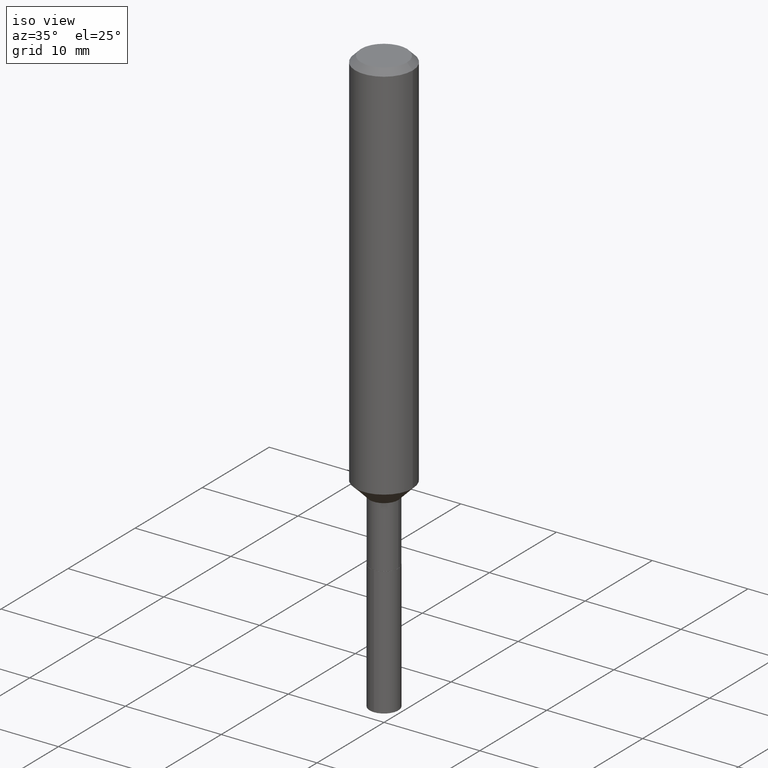
[diagram: clean part render]
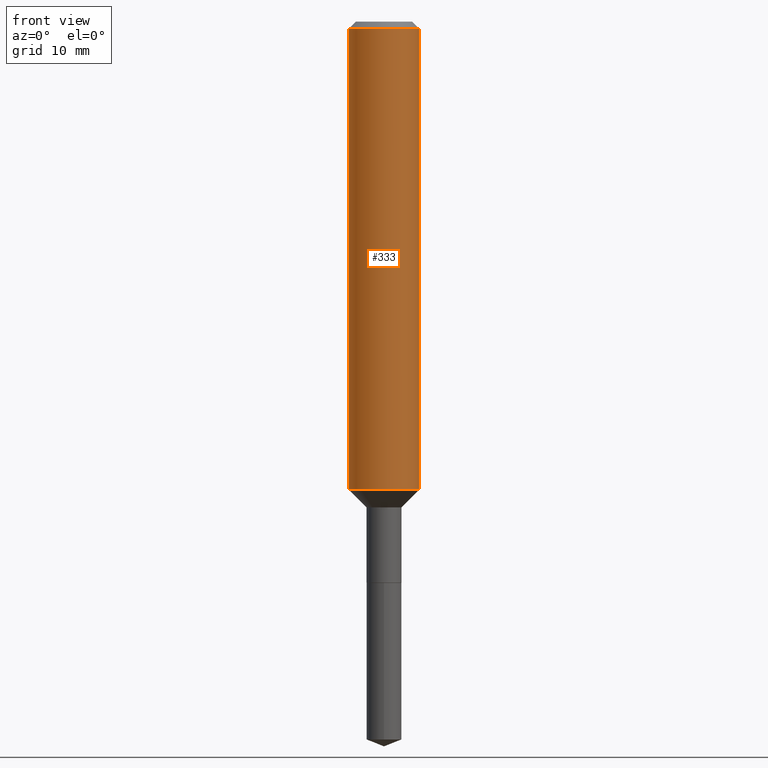
[diagram: tour spotlight — one face highlighted and labeled with its STEP entity id]
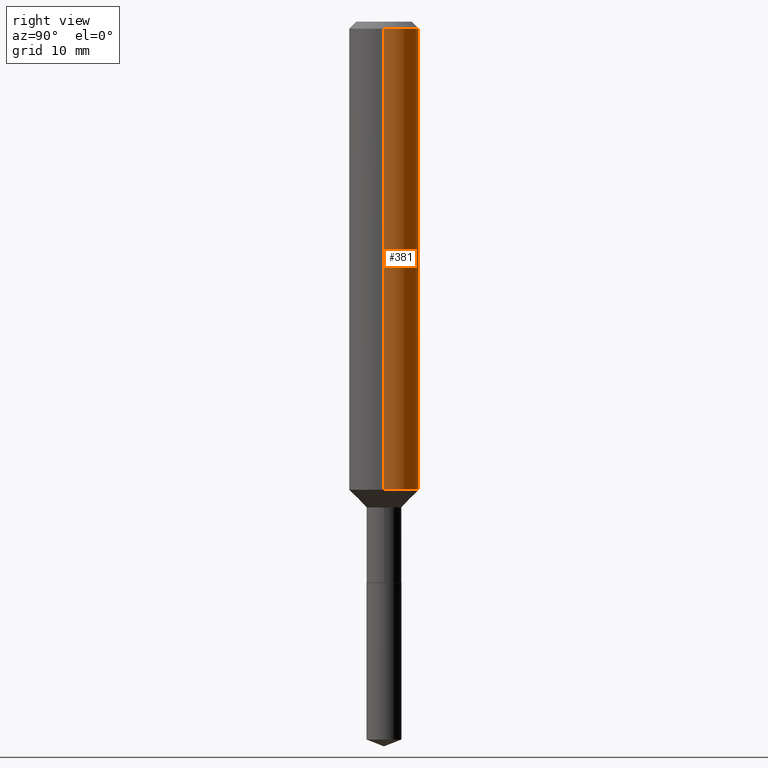
[diagram: tour spotlight — one face highlighted and labeled with its STEP entity id]
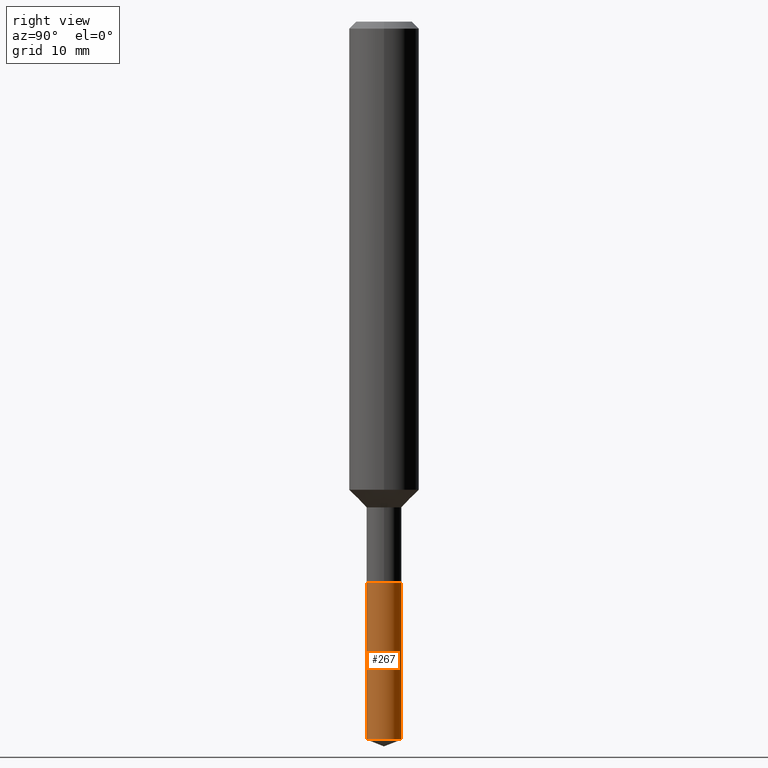
[diagram: tour spotlight — one face highlighted and labeled with its STEP entity id]
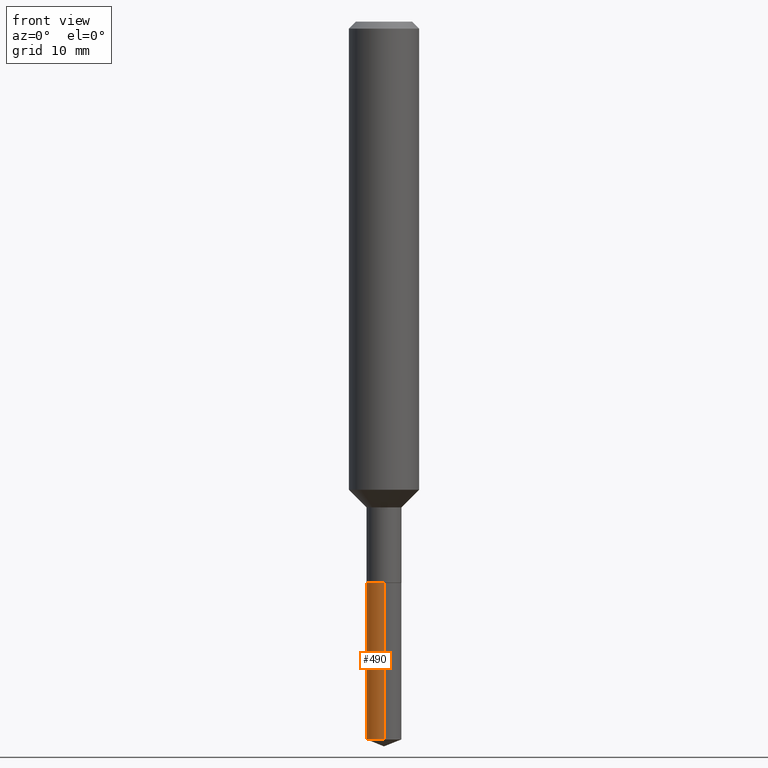
[diagram: tour spotlight — one face highlighted and labeled with its STEP entity id]
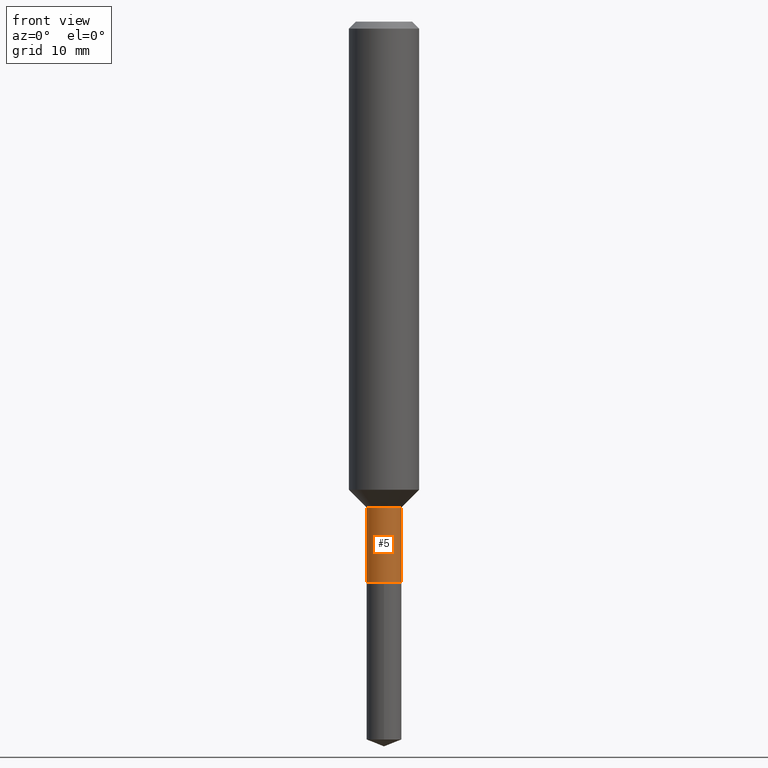
[diagram: tour spotlight — one face highlighted and labeled with its STEP entity id]
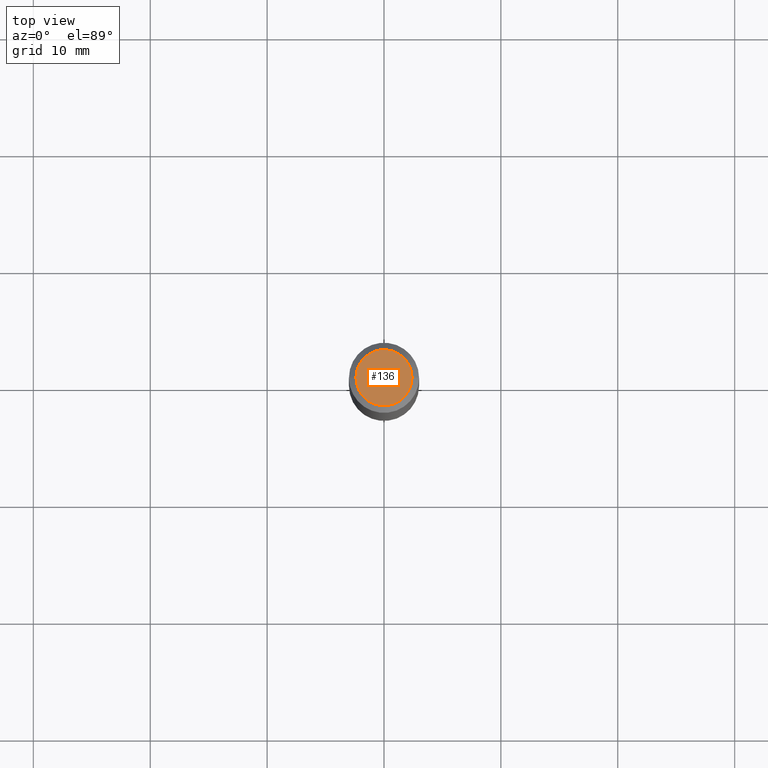
[diagram: tour spotlight — one face highlighted and labeled with its STEP entity id]
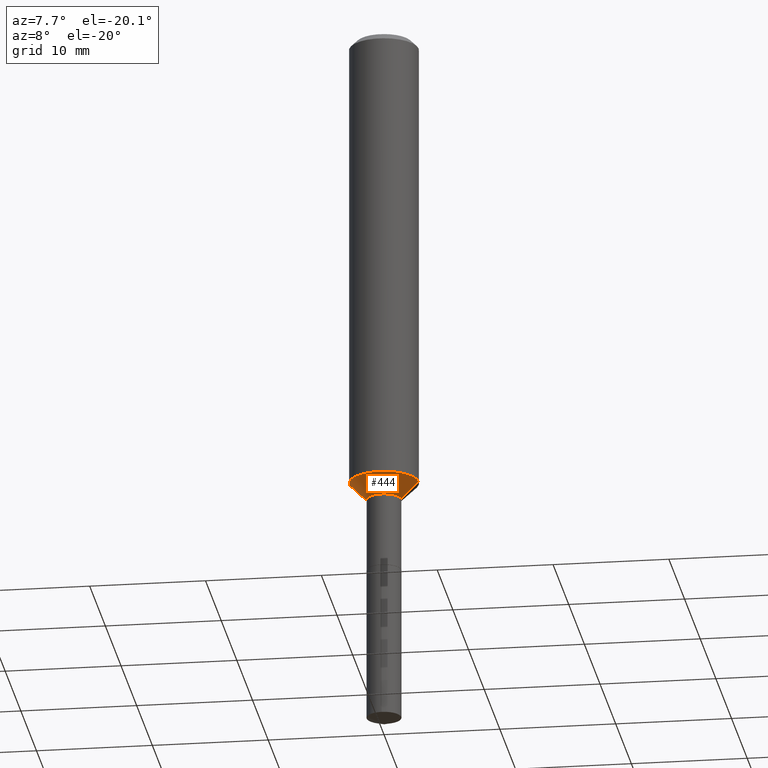
[diagram: tour spotlight — one face highlighted and labeled with its STEP entity id]
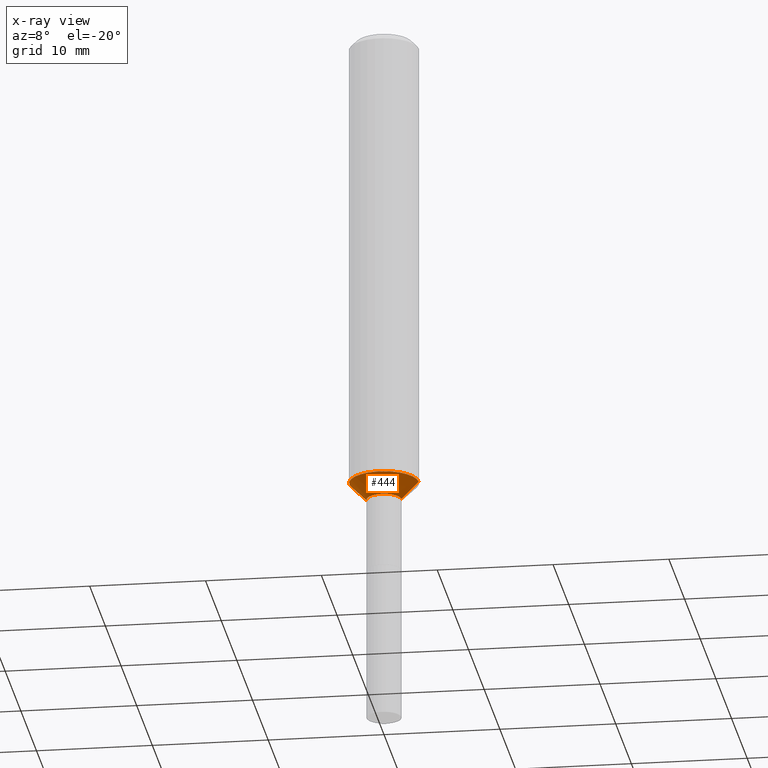
[diagram: x-ray of the same camera — body ghosted, this tour face saturated]
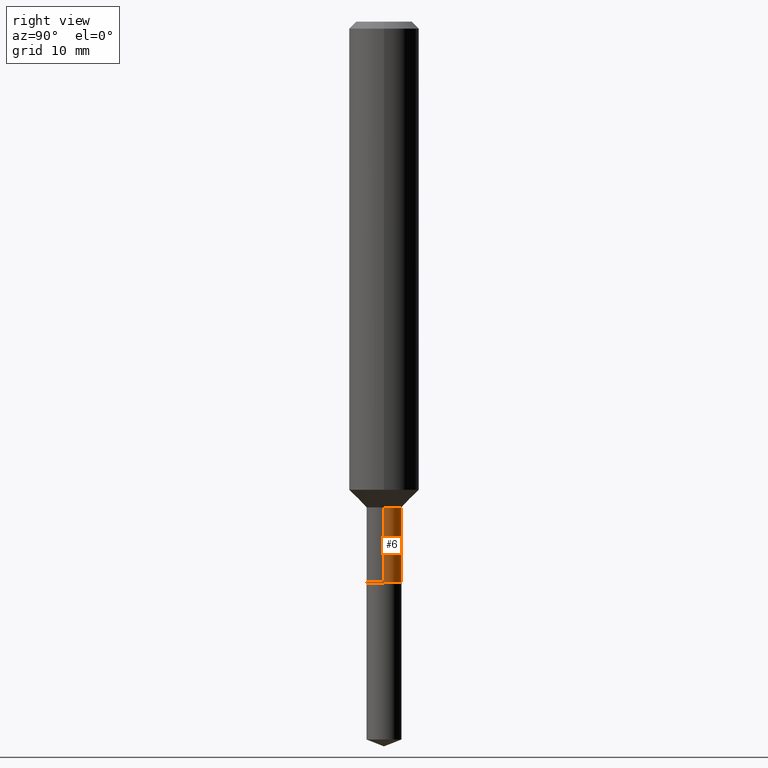
[diagram: tour spotlight — one face highlighted and labeled with its STEP entity id]
A machine part: a face-by-face anatomy tour. The part has 17 B-rep faces; the first image is the clean iso view, then the 8 largest visible faces are spotlighted one at a time (largest first), each with its STEP entity span.

Face 1 — front view, entity #333. In plain terms, the highlighted cylindrical surface (edge-blend (fillet) strip) has radius 2.9997 mm, axis along (-0, 0, 1).
Definition (entity closure, byte-faithful):
#34 = VERTEX_POINT ( 'NONE', #461 ) ;
#57 = VECTOR ( 'NONE', #242, 39.37007874015748143 ) ;
#61 = CARTESIAN_POINT ( 'NONE',  ( 3.855892940152414609E-29, -5.505193201020929624E-15, -1.576750000000000096 ) ) ;
#66 = LINE ( 'NONE', #477, #57 ) ;
#97 = CARTESIAN_POINT ( 'NONE',  ( 0.1180999999999999966, -9.071566814582237199E-16, -0.02362000000000014088 ) ) ;
#109 = VERTEX_POINT ( 'NONE', #97 ) ;
#111 = CIRCLE ( 'NONE', #380, 0.1181000000000001632 ) ;
#160 = VERTEX_POINT ( 'NONE', #353 ) ;
#177 = AXIS2_PLACEMENT_3D ( 'NONE', #438, #475, #210 ) ;
#178 = CARTESIAN_POINT ( 'NONE',  ( -0.1181000000000000799, 8.391509709326788873E-16, -5.809262341591047988E-30 ) ) ;
#205 = VECTOR ( 'NONE', #252, 39.37007874015748143 ) ;
#210 = DIRECTION ( 'NONE',  ( 1.000000000000000000, -6.982962677686266711E-15, 4.876176775795936353E-29 ) ) ;
#217 = ORIENTED_EDGE ( 'NONE', *, *, #393, .T. ) ;
#226 = VERTEX_POINT ( 'NONE', #283 ) ;
#242 = DIRECTION ( 'NONE',  ( -2.445468806185136877E-29, 3.491481338843145188E-15, 1.000000000000000000 ) ) ;
#244 = EDGE_CURVE ( 'NONE', #226, #109, #350, .T. ) ;
#245 = FACE_OUTER_BOUND ( 'NONE', #323, .T. ) ;
#252 = DIRECTION ( 'NONE',  ( -2.445468806185136877E-29, 3.491481338843145188E-15, 1.000000000000000000 ) ) ;
#258 = ORIENTED_EDGE ( 'NONE', *, *, #314, .F. ) ;
#270 = DIRECTION ( 'NONE',  ( -2.445468806185136597E-29, 3.491481338843145583E-15, 1.000000000000000000 ) ) ;
#283 = CARTESIAN_POINT ( 'NONE',  ( -0.1180999999999999966, -1.954680024189523160E-15, -0.02362000000000014088 ) ) ;
#295 = DIRECTION ( 'NONE',  ( 1.000000000000000000, -6.982962677686270655E-15, 0.000000000000000000 ) ) ;
#314 = EDGE_CURVE ( 'NONE', #34, #226, #442, .T. ) ;
#323 = EDGE_LOOP ( 'NONE', ( #258, #443, #217, #485 ) ) ;
#333 = ADVANCED_FACE ( 'NONE', ( #245 ), #365, .T. ) ;
#350 = CIRCLE ( 'NONE', #355, 0.1180999999999999966 ) ;
#353 = CARTESIAN_POINT ( 'NONE',  ( 0.1181000000000001632, -6.329881093255679464E-15, -1.576750000000000096 ) ) ;
#355 = AXIS2_PLACEMENT_3D ( 'NONE', #469, #270, #383 ) ;
#363 = EDGE_CURVE ( 'NONE', #34, #160, #111, .T. ) ;
#365 = CYLINDRICAL_SURFACE ( 'NONE', #177, 0.1181000000000000799 ) ;
#380 = AXIS2_PLACEMENT_3D ( 'NONE', #61, #395, #295 ) ;
#383 = DIRECTION ( 'NONE',  ( 1.000000000000000000, -6.982962677686266711E-15, 0.000000000000000000 ) ) ;
#393 = EDGE_CURVE ( 'NONE', #160, #109, #66, .T. ) ;
#395 = DIRECTION ( 'NONE',  ( -2.445468806185136597E-29, 3.491481338843145583E-15, 1.000000000000000000 ) ) ;
#438 = CARTESIAN_POINT ( 'NONE',  ( 0.000000000000000000, 0.000000000000000000, 0.000000000000000000 ) ) ;
#442 = LINE ( 'NONE', #178, #205 ) ;
#443 = ORIENTED_EDGE ( 'NONE', *, *, #363, .T. ) ;
#461 = CARTESIAN_POINT ( 'NONE',  ( -0.1181000000000001632, -4.666042230088249849E-15, -1.576750000000000096 ) ) ;
#469 = CARTESIAN_POINT ( 'NONE',  ( 5.776197320209327532E-31, -8.246878922347559293E-17, -0.02362000000000014088 ) ) ;
#475 = DIRECTION ( 'NONE',  ( -2.445468806185136597E-29, 3.491481338843145583E-15, 1.000000000000000000 ) ) ;
#477 = CARTESIAN_POINT ( 'NONE',  ( 0.1181000000000000799, -8.246878922347486570E-16, 5.758764772215004644E-30 ) ) ;
#485 = ORIENTED_EDGE ( 'NONE', *, *, #244, .F. ) ;

Face 2 — right view, entity #381. In plain terms, the highlighted cylindrical surface (edge-blend (fillet) strip) has radius 2.9997 mm, axis along (-0, 0, 1).
Definition (entity closure, byte-faithful):
#12 = DIRECTION ( 'NONE',  ( -2.445468806185136597E-29, 3.491481338843145583E-15, 1.000000000000000000 ) ) ;
#33 = CARTESIAN_POINT ( 'NONE',  ( 0.000000000000000000, 0.000000000000000000, 0.000000000000000000 ) ) ;
#34 = VERTEX_POINT ( 'NONE', #461 ) ;
#57 = VECTOR ( 'NONE', #242, 39.37007874015748143 ) ;
#66 = LINE ( 'NONE', #477, #57 ) ;
#97 = CARTESIAN_POINT ( 'NONE',  ( 0.1180999999999999966, -9.071566814582237199E-16, -0.02362000000000014088 ) ) ;
#104 = CYLINDRICAL_SURFACE ( 'NONE', #386, 0.1181000000000000799 ) ;
#107 = ORIENTED_EDGE ( 'NONE', *, *, #393, .F. ) ;
#109 = VERTEX_POINT ( 'NONE', #97 ) ;
#160 = VERTEX_POINT ( 'NONE', #353 ) ;
#166 = DIRECTION ( 'NONE',  ( 1.000000000000000000, -6.982962677686270655E-15, 0.000000000000000000 ) ) ;
#178 = CARTESIAN_POINT ( 'NONE',  ( -0.1181000000000000799, 8.391509709326788873E-16, -5.809262341591047988E-30 ) ) ;
#195 = CARTESIAN_POINT ( 'NONE',  ( 5.776197320209327532E-31, -8.246878922347559293E-17, -0.02362000000000014088 ) ) ;
#200 = EDGE_CURVE ( 'NONE', #160, #34, #440, .T. ) ;
#205 = VECTOR ( 'NONE', #252, 39.37007874015748143 ) ;
#211 = ORIENTED_EDGE ( 'NONE', *, *, #200, .T. ) ;
#222 = AXIS2_PLACEMENT_3D ( 'NONE', #313, #464, #166 ) ;
#226 = VERTEX_POINT ( 'NONE', #283 ) ;
#234 = ORIENTED_EDGE ( 'NONE', *, *, #314, .T. ) ;
#242 = DIRECTION ( 'NONE',  ( -2.445468806185136877E-29, 3.491481338843145188E-15, 1.000000000000000000 ) ) ;
#250 = FACE_OUTER_BOUND ( 'NONE', #364, .T. ) ;
#252 = DIRECTION ( 'NONE',  ( -2.445468806185136877E-29, 3.491481338843145188E-15, 1.000000000000000000 ) ) ;
#273 = AXIS2_PLACEMENT_3D ( 'NONE', #195, #12, #312 ) ;
#283 = CARTESIAN_POINT ( 'NONE',  ( -0.1180999999999999966, -1.954680024189523160E-15, -0.02362000000000014088 ) ) ;
#302 = EDGE_CURVE ( 'NONE', #109, #226, #433, .T. ) ;
#305 = ORIENTED_EDGE ( 'NONE', *, *, #302, .F. ) ;
#312 = DIRECTION ( 'NONE',  ( 1.000000000000000000, -6.982962677686266711E-15, 0.000000000000000000 ) ) ;
#313 = CARTESIAN_POINT ( 'NONE',  ( 3.855892940152414609E-29, -5.505193201020929624E-15, -1.576750000000000096 ) ) ;
#314 = EDGE_CURVE ( 'NONE', #34, #226, #442, .T. ) ;
#322 = DIRECTION ( 'NONE',  ( -2.445468806185136597E-29, 3.491481338843145583E-15, 1.000000000000000000 ) ) ;
#353 = CARTESIAN_POINT ( 'NONE',  ( 0.1181000000000001632, -6.329881093255679464E-15, -1.576750000000000096 ) ) ;
#364 = EDGE_LOOP ( 'NONE', ( #211, #234, #305, #107 ) ) ;
#381 = ADVANCED_FACE ( 'NONE', ( #250 ), #104, .T. ) ;
#386 = AXIS2_PLACEMENT_3D ( 'NONE', #33, #322, #436 ) ;
#393 = EDGE_CURVE ( 'NONE', #160, #109, #66, .T. ) ;
#433 = CIRCLE ( 'NONE', #273, 0.1180999999999999966 ) ;
#436 = DIRECTION ( 'NONE',  ( 1.000000000000000000, -6.982962677686266711E-15, 4.876176775795936353E-29 ) ) ;
#440 = CIRCLE ( 'NONE', #222, 0.1181000000000001632 ) ;
#442 = LINE ( 'NONE', #178, #205 ) ;
#461 = CARTESIAN_POINT ( 'NONE',  ( -0.1181000000000001632, -4.666042230088249849E-15, -1.576750000000000096 ) ) ;
#464 = DIRECTION ( 'NONE',  ( -2.445468806185136597E-29, 3.491481338843145583E-15, 1.000000000000000000 ) ) ;
#477 = CARTESIAN_POINT ( 'NONE',  ( 0.1181000000000000799, -8.246878922347486570E-16, 5.758764772215004644E-30 ) ) ;

Face 3 — right view, entity #267. In plain terms, the highlighted cylindrical surface (edge-blend (fillet) strip) has radius 1.4999 mm, axis along (-0, 0, 1).
Definition (entity closure, byte-faithful):
#2 = CARTESIAN_POINT ( 'NONE',  ( 4.621202403048053204E-29, -6.597852286011892490E-15, -1.889700000000000157 ) ) ;
#4 = DIRECTION ( 'NONE',  ( -6.982962677686265922E-15, -1.000000000000000000, 4.626330217890370914E-15 ) ) ;
#14 = VERTEX_POINT ( 'NONE', #375 ) ;
#20 = EDGE_CURVE ( 'NONE', #14, #46, #423, .T. ) ;
#26 = DIRECTION ( 'NONE',  ( -2.434988852863248882E-29, 3.506489228481988303E-15, 1.000000000000000000 ) ) ;
#46 = VERTEX_POINT ( 'NONE', #82 ) ;
#82 = CARTESIAN_POINT ( 'NONE',  ( 4.195754854663982138E-16, 0.05904999999999338556, -1.889700000000000379 ) ) ;
#85 = DIRECTION ( 'NONE',  ( -2.434988852863249163E-29, 3.506489228481988303E-15, 1.000000000000000000 ) ) ;
#91 = EDGE_CURVE ( 'NONE', #294, #439, #358, .T. ) ;
#96 = AXIS2_PLACEMENT_3D ( 'NONE', #335, #85, #372 ) ;
#117 = AXIS2_PLACEMENT_3D ( 'NONE', #349, #164, #382 ) ;
#124 = DIRECTION ( 'NONE',  ( -2.434988852863248882E-29, 3.506489228481988303E-15, 1.000000000000000000 ) ) ;
#128 = EDGE_CURVE ( 'NONE', #439, #46, #159, .T. ) ;
#132 = ORIENTED_EDGE ( 'NONE', *, *, #20, .F. ) ;
#139 = VECTOR ( 'NONE', #26, 39.37007874015748143 ) ;
#142 = ORIENTED_EDGE ( 'NONE', *, *, #91, .T. ) ;
#151 = ORIENTED_EDGE ( 'NONE', *, *, #128, .T. ) ;
#157 = DIRECTION ( 'NONE',  ( -2.434988852863249163E-29, 3.506489228481988303E-15, 1.000000000000000000 ) ) ;
#159 = LINE ( 'NONE', #203, #201 ) ;
#164 = DIRECTION ( 'NONE',  ( -2.434988852863249163E-29, 3.506489228481988303E-15, 1.000000000000000000 ) ) ;
#168 = LINE ( 'NONE', #173, #139 ) ;
#173 = CARTESIAN_POINT ( 'NONE',  ( -4.123439461173276378E-16, -0.05905000000000658333, -1.889699999999999713 ) ) ;
#175 = CARTESIAN_POINT ( 'NONE',  ( 4.195754854663982138E-16, 0.05904999999999154675, -2.417639586414937813 ) ) ;
#179 = ORIENTED_EDGE ( 'NONE', *, *, #370, .F. ) ;
#199 = CYLINDRICAL_SURFACE ( 'NONE', #117, 0.05904999999999998445 ) ;
#201 = VECTOR ( 'NONE', #124, 39.37007874015748143 ) ;
#203 = CARTESIAN_POINT ( 'NONE',  ( 4.195754854663851976E-16, 0.05904999999999338556, -1.889700000000000379 ) ) ;
#238 = FACE_OUTER_BOUND ( 'NONE', #384, .T. ) ;
#267 = ADVANCED_FACE ( 'NONE', ( #238 ), #199, .T. ) ;
#294 = VERTEX_POINT ( 'NONE', #379 ) ;
#335 = CARTESIAN_POINT ( 'NONE',  ( 5.906729410953660038E-29, -8.449066759065107176E-15, -2.417639586414937813 ) ) ;
#349 = CARTESIAN_POINT ( 'NONE',  ( 4.621202403048053204E-29, -6.597852286011892490E-15, -1.889700000000000157 ) ) ;
#358 = CIRCLE ( 'NONE', #96, 0.05904999999999999138 ) ;
#370 = EDGE_CURVE ( 'NONE', #294, #14, #168, .T. ) ;
#372 = DIRECTION ( 'NONE',  ( -6.982962677686265922E-15, -1.000000000000000000, 4.626330217890370125E-15 ) ) ;
#375 = CARTESIAN_POINT ( 'NONE',  ( -4.123439461173276378E-16, -0.05905000000000658333, -1.889699999999999713 ) ) ;
#379 = CARTESIAN_POINT ( 'NONE',  ( -4.123439461173149174E-16, -0.05905000000000844990, -2.417639586414937369 ) ) ;
#382 = DIRECTION ( 'NONE',  ( -6.982962677686265922E-15, -1.000000000000000000, 4.626330217890370914E-15 ) ) ;
#384 = EDGE_LOOP ( 'NONE', ( #142, #151, #132, #179 ) ) ;
#423 = CIRCLE ( 'NONE', #479, 0.05904999999999998445 ) ;
#439 = VERTEX_POINT ( 'NONE', #175 ) ;
#479 = AXIS2_PLACEMENT_3D ( 'NONE', #2, #157, #4 ) ;

Face 4 — front view, entity #490. In plain terms, the highlighted cylindrical surface (edge-blend (fillet) strip) has radius 1.4999 mm, axis along (-0, 0, 1).
Definition (entity closure, byte-faithful):
#8 = AXIS2_PLACEMENT_3D ( 'NONE', #68, #286, #324 ) ;
#14 = VERTEX_POINT ( 'NONE', #375 ) ;
#26 = DIRECTION ( 'NONE',  ( -2.434988852863248882E-29, 3.506489228481988303E-15, 1.000000000000000000 ) ) ;
#32 = CIRCLE ( 'NONE', #8, 0.05904999999999998445 ) ;
#40 = FACE_OUTER_BOUND ( 'NONE', #420, .T. ) ;
#46 = VERTEX_POINT ( 'NONE', #82 ) ;
#49 = DIRECTION ( 'NONE',  ( -6.982962677686265922E-15, -1.000000000000000000, 4.626330217890370125E-15 ) ) ;
#68 = CARTESIAN_POINT ( 'NONE',  ( 4.621202403048053204E-29, -6.597852286011892490E-15, -1.889700000000000157 ) ) ;
#79 = AXIS2_PLACEMENT_3D ( 'NONE', #236, #317, #49 ) ;
#82 = CARTESIAN_POINT ( 'NONE',  ( 4.195754854663982138E-16, 0.05904999999999338556, -1.889700000000000379 ) ) ;
#124 = DIRECTION ( 'NONE',  ( -2.434988852863248882E-29, 3.506489228481988303E-15, 1.000000000000000000 ) ) ;
#128 = EDGE_CURVE ( 'NONE', #439, #46, #159, .T. ) ;
#134 = ORIENTED_EDGE ( 'NONE', *, *, #370, .T. ) ;
#139 = VECTOR ( 'NONE', #26, 39.37007874015748143 ) ;
#148 = DIRECTION ( 'NONE',  ( -6.982962677686265922E-15, -1.000000000000000000, 4.626330217890370914E-15 ) ) ;
#152 = CYLINDRICAL_SURFACE ( 'NONE', #356, 0.05904999999999998445 ) ;
#159 = LINE ( 'NONE', #203, #201 ) ;
#168 = LINE ( 'NONE', #173, #139 ) ;
#173 = CARTESIAN_POINT ( 'NONE',  ( -4.123439461173276378E-16, -0.05905000000000658333, -1.889699999999999713 ) ) ;
#175 = CARTESIAN_POINT ( 'NONE',  ( 4.195754854663982138E-16, 0.05904999999999154675, -2.417639586414937813 ) ) ;
#186 = CARTESIAN_POINT ( 'NONE',  ( 4.621202403048053204E-29, -6.597852286011892490E-15, -1.889700000000000157 ) ) ;
#198 = ORIENTED_EDGE ( 'NONE', *, *, #128, .F. ) ;
#201 = VECTOR ( 'NONE', #124, 39.37007874015748143 ) ;
#203 = CARTESIAN_POINT ( 'NONE',  ( 4.195754854663851976E-16, 0.05904999999999338556, -1.889700000000000379 ) ) ;
#227 = EDGE_CURVE ( 'NONE', #439, #294, #291, .T. ) ;
#236 = CARTESIAN_POINT ( 'NONE',  ( 5.906729410953660038E-29, -8.449066759065107176E-15, -2.417639586414937813 ) ) ;
#257 = DIRECTION ( 'NONE',  ( -2.434988852863249163E-29, 3.506489228481988303E-15, 1.000000000000000000 ) ) ;
#260 = ORIENTED_EDGE ( 'NONE', *, *, #421, .F. ) ;
#286 = DIRECTION ( 'NONE',  ( -2.434988852863249163E-29, 3.506489228481988303E-15, 1.000000000000000000 ) ) ;
#291 = CIRCLE ( 'NONE', #79, 0.05904999999999999138 ) ;
#294 = VERTEX_POINT ( 'NONE', #379 ) ;
#317 = DIRECTION ( 'NONE',  ( -2.434988852863249163E-29, 3.506489228481988303E-15, 1.000000000000000000 ) ) ;
#324 = DIRECTION ( 'NONE',  ( -6.982962677686265922E-15, -1.000000000000000000, 4.626330217890370914E-15 ) ) ;
#325 = ORIENTED_EDGE ( 'NONE', *, *, #227, .T. ) ;
#356 = AXIS2_PLACEMENT_3D ( 'NONE', #186, #257, #148 ) ;
#370 = EDGE_CURVE ( 'NONE', #294, #14, #168, .T. ) ;
#375 = CARTESIAN_POINT ( 'NONE',  ( -4.123439461173276378E-16, -0.05905000000000658333, -1.889699999999999713 ) ) ;
#379 = CARTESIAN_POINT ( 'NONE',  ( -4.123439461173149174E-16, -0.05905000000000844990, -2.417639586414937369 ) ) ;
#420 = EDGE_LOOP ( 'NONE', ( #198, #325, #134, #260 ) ) ;
#421 = EDGE_CURVE ( 'NONE', #46, #14, #32, .T. ) ;
#439 = VERTEX_POINT ( 'NONE', #175 ) ;
#490 = ADVANCED_FACE ( 'NONE', ( #40 ), #152, .T. ) ;

Face 5 — front view, entity #5. In plain terms, the highlighted cylindrical surface (edge-blend (fillet) strip) has radius 1.4999 mm, axis along (-0, 0, 1).
Definition (entity closure, byte-faithful):
#5 = ADVANCED_FACE ( 'NONE', ( #487 ), #78, .T. ) ;
#9 = DIRECTION ( 'NONE',  ( 1.000000000000000000, -6.982962677686266711E-15, 4.876176775795935232E-29 ) ) ;
#24 = CARTESIAN_POINT ( 'NONE',  ( -0.05904999999999988036, -5.734160374244706712E-15, -1.889200000000000212 ) ) ;
#31 = ORIENTED_EDGE ( 'NONE', *, *, #112, .F. ) ;
#39 = VERTEX_POINT ( 'NONE', #218 ) ;
#48 = CIRCLE ( 'NONE', #88, 0.05904999999999988036 ) ;
#59 = DIRECTION ( 'NONE',  ( -2.445468806185136597E-29, 3.491481338843145583E-15, 1.000000000000000000 ) ) ;
#67 = VERTEX_POINT ( 'NONE', #84 ) ;
#73 = ORIENTED_EDGE ( 'NONE', *, *, #402, .T. ) ;
#78 = CYLINDRICAL_SURFACE ( 'NONE', #412, 0.05904999999999988036 ) ;
#84 = CARTESIAN_POINT ( 'NONE',  ( 0.05904999999999988036, -6.123709120196991610E-15, -1.635800000000000143 ) ) ;
#88 = AXIS2_PLACEMENT_3D ( 'NONE', #351, #348, #93 ) ;
#93 = DIRECTION ( 'NONE',  ( 1.000000000000000000, -6.982962677686270655E-15, 0.000000000000000000 ) ) ;
#112 = EDGE_CURVE ( 'NONE', #39, #67, #48, .T. ) ;
#143 = EDGE_CURVE ( 'NONE', #410, #331, #392, .T. ) ;
#145 = ORIENTED_EDGE ( 'NONE', *, *, #473, .F. ) ;
#150 = LINE ( 'NONE', #261, #155 ) ;
#155 = VECTOR ( 'NONE', #411, 39.37007874015748143 ) ;
#182 = DIRECTION ( 'NONE',  ( -2.445468806185136597E-29, 3.491481338843145583E-15, 1.000000000000000000 ) ) ;
#189 = ORIENTED_EDGE ( 'NONE', *, *, #143, .T. ) ;
#197 = DIRECTION ( 'NONE',  ( 1.000000000000000000, -6.982962677686270655E-15, 0.000000000000000000 ) ) ;
#218 = CARTESIAN_POINT ( 'NONE',  ( -0.05904999999999988036, -5.734160374244706712E-15, -1.635800000000000143 ) ) ;
#261 = CARTESIAN_POINT ( 'NONE',  ( -0.05904999999999988036, 4.195754854663383097E-16, -2.904631170795515936E-30 ) ) ;
#276 = CARTESIAN_POINT ( 'NONE',  ( 4.619979668644960403E-29, -6.596106545342470986E-15, -1.889200000000000212 ) ) ;
#320 = AXIS2_PLACEMENT_3D ( 'NONE', #276, #59, #197 ) ;
#331 = VERTEX_POINT ( 'NONE', #445 ) ;
#342 = CARTESIAN_POINT ( 'NONE',  ( 0.000000000000000000, 0.000000000000000000, 0.000000000000000000 ) ) ;
#348 = DIRECTION ( 'NONE',  ( -2.445468806185136597E-29, 3.491481338843145583E-15, 1.000000000000000000 ) ) ;
#351 = CARTESIAN_POINT ( 'NONE',  ( 4.000297873157646549E-29, -5.711365174079618268E-15, -1.635800000000000143 ) ) ;
#389 = CARTESIAN_POINT ( 'NONE',  ( 0.05904999999999988036, -4.123439461173731945E-16, 2.879382386107493914E-30 ) ) ;
#390 = LINE ( 'NONE', #389, #403 ) ;
#392 = CIRCLE ( 'NONE', #320, 0.05904999999999988036 ) ;
#397 = DIRECTION ( 'NONE',  ( -2.445468806185136877E-29, 3.491481338843145188E-15, 1.000000000000000000 ) ) ;
#402 = EDGE_CURVE ( 'NONE', #331, #67, #390, .T. ) ;
#403 = VECTOR ( 'NONE', #397, 39.37007874015748143 ) ;
#410 = VERTEX_POINT ( 'NONE', #24 ) ;
#411 = DIRECTION ( 'NONE',  ( -2.445468806185136877E-29, 3.491481338843145188E-15, 1.000000000000000000 ) ) ;
#412 = AXIS2_PLACEMENT_3D ( 'NONE', #342, #182, #9 ) ;
#445 = CARTESIAN_POINT ( 'NONE',  ( 0.05904999999999988036, -7.008450491459845117E-15, -1.889200000000000212 ) ) ;
#453 = EDGE_LOOP ( 'NONE', ( #145, #189, #73, #31 ) ) ;
#473 = EDGE_CURVE ( 'NONE', #410, #39, #150, .T. ) ;
#487 = FACE_OUTER_BOUND ( 'NONE', #453, .T. ) ;

Face 6 — top view, entity #136. In plain terms, the highlighted planar face has unit normal (0, -0, -1).
Definition (entity closure, byte-faithful):
#16 = FACE_OUTER_BOUND ( 'NONE', #337, .T. ) ;
#50 = DIRECTION ( 'NONE',  ( 2.438088387897960049E-29, -3.491481338843145188E-15, -1.000000000000000000 ) ) ;
#55 = CARTESIAN_POINT ( 'NONE',  ( 2.358133508849003952E-46, -3.366789680499277518E-32, -9.642868896486260050E-18 ) ) ;
#60 = EDGE_CURVE ( 'NONE', #69, #448, #427, .T. ) ;
#65 = AXIS2_PLACEMENT_3D ( 'NONE', #204, #326, #399 ) ;
#69 = VERTEX_POINT ( 'NONE', #269 ) ;
#98 = CARTESIAN_POINT ( 'NONE',  ( 0.09447999999999998066, -7.704367267948738690E-16, -1.928573779296752193E-17 ) ) ;
#102 = ORIENTED_EDGE ( 'NONE', *, *, #332, .T. ) ;
#114 = ORIENTED_EDGE ( 'NONE', *, *, #60, .T. ) ;
#120 = DIRECTION ( 'NONE',  ( 1.000000000000000000, -6.982962677686267499E-15, 4.875432709231658792E-29 ) ) ;
#130 = PLANE ( 'NONE',  #147 ) ;
#136 = ADVANCED_FACE ( 'NONE', ( #16 ), #130, .F. ) ;
#147 = AXIS2_PLACEMENT_3D ( 'NONE', #55, #50, #202 ) ;
#202 = DIRECTION ( 'NONE',  ( -1.000000000000000000, 6.982962677686265922E-15, -4.876176775795935793E-29 ) ) ;
#204 = CARTESIAN_POINT ( 'NONE',  ( 4.716267017698007905E-46, -6.733579360998555036E-32, -1.928573779297252010E-17 ) ) ;
#263 = AXIS2_PLACEMENT_3D ( 'NONE', #268, #417, #120 ) ;
#268 = CARTESIAN_POINT ( 'NONE',  ( 4.716267017698007905E-46, -6.733579360998555036E-32, -1.928573779297252010E-17 ) ) ;
#269 = CARTESIAN_POINT ( 'NONE',  ( -0.09447999999999998066, 7.009847083995354710E-16, -1.928573779297727792E-17 ) ) ;
#326 = DIRECTION ( 'NONE',  ( -2.445468806185136597E-29, 3.491481338843145583E-15, 1.000000000000000000 ) ) ;
#332 = EDGE_CURVE ( 'NONE', #448, #69, #471, .T. ) ;
#337 = EDGE_LOOP ( 'NONE', ( #114, #102 ) ) ;
#399 = DIRECTION ( 'NONE',  ( 1.000000000000000000, -6.982962677686267499E-15, 4.875432709231658792E-29 ) ) ;
#417 = DIRECTION ( 'NONE',  ( -2.445468806185136597E-29, 3.491481338843145583E-15, 1.000000000000000000 ) ) ;
#427 = CIRCLE ( 'NONE', #263, 0.09447999999999998066 ) ;
#448 = VERTEX_POINT ( 'NONE', #98 ) ;
#471 = CIRCLE ( 'NONE', #65, 0.09447999999999998066 ) ;

Face 7 — auxiliary view, entity #444. An x-ray twin of the same camera follows (body ghosted, this face saturated) — the face is partly hidden behind the body. In plain terms, the highlighted conical surface has half-angle 45 deg.
Definition (entity closure, byte-faithful):
#21 = DIRECTION ( 'NONE',  ( 0.7071067811865491270, -2.468850131082274021E-15, 0.7071067811865459074 ) ) ;
#34 = VERTEX_POINT ( 'NONE', #461 ) ;
#39 = VERTEX_POINT ( 'NONE', #218 ) ;
#48 = CIRCLE ( 'NONE', #88, 0.05904999999999988036 ) ;
#61 = CARTESIAN_POINT ( 'NONE',  ( 3.855892940152414609E-29, -5.505193201020929624E-15, -1.576750000000000096 ) ) ;
#67 = VERTEX_POINT ( 'NONE', #84 ) ;
#70 = CARTESIAN_POINT ( 'NONE',  ( 0.05904999999999988036, -6.123709120196991610E-15, -1.635800000000000143 ) ) ;
#84 = CARTESIAN_POINT ( 'NONE',  ( 0.05904999999999988036, -6.123709120196991610E-15, -1.635800000000000143 ) ) ;
#88 = AXIS2_PLACEMENT_3D ( 'NONE', #351, #348, #93 ) ;
#93 = DIRECTION ( 'NONE',  ( 1.000000000000000000, -6.982962677686270655E-15, 0.000000000000000000 ) ) ;
#95 = CARTESIAN_POINT ( 'NONE',  ( -0.05904999999999988036, -5.291789688613279563E-15, -1.635800000000000143 ) ) ;
#100 = ORIENTED_EDGE ( 'NONE', *, *, #363, .F. ) ;
#111 = CIRCLE ( 'NONE', #380, 0.1181000000000001632 ) ;
#112 = EDGE_CURVE ( 'NONE', #39, #67, #48, .T. ) ;
#126 = LINE ( 'NONE', #95, #230 ) ;
#144 = DIRECTION ( 'NONE',  ( -2.445468806185136597E-29, 3.491481338843145583E-15, 1.000000000000000000 ) ) ;
#146 = ORIENTED_EDGE ( 'NONE', *, *, #284, .F. ) ;
#160 = VERTEX_POINT ( 'NONE', #353 ) ;
#215 = ORIENTED_EDGE ( 'NONE', *, *, #334, .T. ) ;
#218 = CARTESIAN_POINT ( 'NONE',  ( -0.05904999999999988036, -5.734160374244706712E-15, -1.635800000000000143 ) ) ;
#230 = VECTOR ( 'NONE', #385, 39.37007874015748143 ) ;
#231 = AXIS2_PLACEMENT_3D ( 'NONE', #484, #144, #297 ) ;
#248 = LINE ( 'NONE', #70, #480 ) ;
#284 = EDGE_CURVE ( 'NONE', #39, #34, #126, .T. ) ;
#293 = CONICAL_SURFACE ( 'NONE', #231, 0.05904999999999988036, 0.7853981633974506105 ) ;
#295 = DIRECTION ( 'NONE',  ( 1.000000000000000000, -6.982962677686270655E-15, 0.000000000000000000 ) ) ;
#297 = DIRECTION ( 'NONE',  ( 1.000000000000000000, -6.982962677686270655E-15, 0.000000000000000000 ) ) ;
#298 = EDGE_LOOP ( 'NONE', ( #146, #300, #215, #100 ) ) ;
#300 = ORIENTED_EDGE ( 'NONE', *, *, #112, .T. ) ;
#334 = EDGE_CURVE ( 'NONE', #67, #160, #248, .T. ) ;
#348 = DIRECTION ( 'NONE',  ( -2.445468806185136597E-29, 3.491481338843145583E-15, 1.000000000000000000 ) ) ;
#351 = CARTESIAN_POINT ( 'NONE',  ( 4.000297873157646549E-29, -5.711365174079618268E-15, -1.635800000000000143 ) ) ;
#353 = CARTESIAN_POINT ( 'NONE',  ( 0.1181000000000001632, -6.329881093255679464E-15, -1.576750000000000096 ) ) ;
#363 = EDGE_CURVE ( 'NONE', #34, #160, #111, .T. ) ;
#380 = AXIS2_PLACEMENT_3D ( 'NONE', #61, #395, #295 ) ;
#385 = DIRECTION ( 'NONE',  ( -0.7071067811865491270, 7.493145998870360471E-15, 0.7071067811865459074 ) ) ;
#395 = DIRECTION ( 'NONE',  ( -2.445468806185136597E-29, 3.491481338843145583E-15, 1.000000000000000000 ) ) ;
#444 = ADVANCED_FACE ( 'NONE', ( #482 ), #293, .T. ) ;
#461 = CARTESIAN_POINT ( 'NONE',  ( -0.1181000000000001632, -4.666042230088249849E-15, -1.576750000000000096 ) ) ;
#480 = VECTOR ( 'NONE', #21, 39.37007874015748143 ) ;
#482 = FACE_OUTER_BOUND ( 'NONE', #298, .T. ) ;
#484 = CARTESIAN_POINT ( 'NONE',  ( 4.000297873157646549E-29, -5.711365174079618268E-15, -1.635800000000000143 ) ) ;

Face 8 — right view, entity #6. In plain terms, the highlighted cylindrical surface (edge-blend (fillet) strip) has radius 1.4999 mm, axis along (-0, 0, 1).
Definition (entity closure, byte-faithful):
#6 = ADVANCED_FACE ( 'NONE', ( #456 ), #116, .T. ) ;
#22 = EDGE_LOOP ( 'NONE', ( #360, #191, #289, #396 ) ) ;
#24 = CARTESIAN_POINT ( 'NONE',  ( -0.05904999999999988036, -5.734160374244706712E-15, -1.889200000000000212 ) ) ;
#35 = CARTESIAN_POINT ( 'NONE',  ( 4.000297873157646549E-29, -5.711365174079618268E-15, -1.635800000000000143 ) ) ;
#39 = VERTEX_POINT ( 'NONE', #218 ) ;
#42 = DIRECTION ( 'NONE',  ( 1.000000000000000000, -6.982962677686270655E-15, 0.000000000000000000 ) ) ;
#67 = VERTEX_POINT ( 'NONE', #84 ) ;
#84 = CARTESIAN_POINT ( 'NONE',  ( 0.05904999999999988036, -6.123709120196991610E-15, -1.635800000000000143 ) ) ;
#116 = CYLINDRICAL_SURFACE ( 'NONE', #303, 0.05904999999999988036 ) ;
#129 = CARTESIAN_POINT ( 'NONE',  ( 4.619979668644960403E-29, -6.596106545342470986E-15, -1.889200000000000212 ) ) ;
#150 = LINE ( 'NONE', #261, #155 ) ;
#155 = VECTOR ( 'NONE', #411, 39.37007874015748143 ) ;
#184 = AXIS2_PLACEMENT_3D ( 'NONE', #129, #462, #281 ) ;
#187 = CARTESIAN_POINT ( 'NONE',  ( 0.000000000000000000, 0.000000000000000000, 0.000000000000000000 ) ) ;
#191 = ORIENTED_EDGE ( 'NONE', *, *, #473, .T. ) ;
#218 = CARTESIAN_POINT ( 'NONE',  ( -0.05904999999999988036, -5.734160374244706712E-15, -1.635800000000000143 ) ) ;
#261 = CARTESIAN_POINT ( 'NONE',  ( -0.05904999999999988036, 4.195754854663383097E-16, -2.904631170795515936E-30 ) ) ;
#264 = CIRCLE ( 'NONE', #184, 0.05904999999999988036 ) ;
#265 = CIRCLE ( 'NONE', #274, 0.05904999999999988036 ) ;
#274 = AXIS2_PLACEMENT_3D ( 'NONE', #35, #299, #42 ) ;
#281 = DIRECTION ( 'NONE',  ( 1.000000000000000000, -6.982962677686270655E-15, 0.000000000000000000 ) ) ;
#285 = EDGE_CURVE ( 'NONE', #331, #410, #264, .T. ) ;
#289 = ORIENTED_EDGE ( 'NONE', *, *, #454, .F. ) ;
#299 = DIRECTION ( 'NONE',  ( -2.445468806185136597E-29, 3.491481338843145583E-15, 1.000000000000000000 ) ) ;
#303 = AXIS2_PLACEMENT_3D ( 'NONE', #187, #407, #344 ) ;
#331 = VERTEX_POINT ( 'NONE', #445 ) ;
#344 = DIRECTION ( 'NONE',  ( 1.000000000000000000, -6.982962677686266711E-15, 4.876176775795935232E-29 ) ) ;
#360 = ORIENTED_EDGE ( 'NONE', *, *, #285, .T. ) ;
#389 = CARTESIAN_POINT ( 'NONE',  ( 0.05904999999999988036, -4.123439461173731945E-16, 2.879382386107493914E-30 ) ) ;
#390 = LINE ( 'NONE', #389, #403 ) ;
#396 = ORIENTED_EDGE ( 'NONE', *, *, #402, .F. ) ;
#397 = DIRECTION ( 'NONE',  ( -2.445468806185136877E-29, 3.491481338843145188E-15, 1.000000000000000000 ) ) ;
#402 = EDGE_CURVE ( 'NONE', #331, #67, #390, .T. ) ;
#403 = VECTOR ( 'NONE', #397, 39.37007874015748143 ) ;
#407 = DIRECTION ( 'NONE',  ( -2.445468806185136597E-29, 3.491481338843145583E-15, 1.000000000000000000 ) ) ;
#410 = VERTEX_POINT ( 'NONE', #24 ) ;
#411 = DIRECTION ( 'NONE',  ( -2.445468806185136877E-29, 3.491481338843145188E-15, 1.000000000000000000 ) ) ;
#445 = CARTESIAN_POINT ( 'NONE',  ( 0.05904999999999988036, -7.008450491459845117E-15, -1.889200000000000212 ) ) ;
#454 = EDGE_CURVE ( 'NONE', #67, #39, #265, .T. ) ;
#456 = FACE_OUTER_BOUND ( 'NONE', #22, .T. ) ;
#462 = DIRECTION ( 'NONE',  ( -2.445468806185136597E-29, 3.491481338843145583E-15, 1.000000000000000000 ) ) ;
#473 = EDGE_CURVE ( 'NONE', #410, #39, #150, .T. ) ;